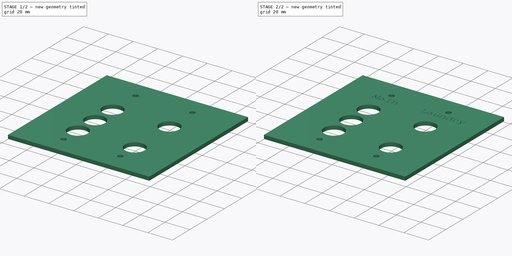
[diagram: build sequence overview — one tinted view per stage of 2, left to right]
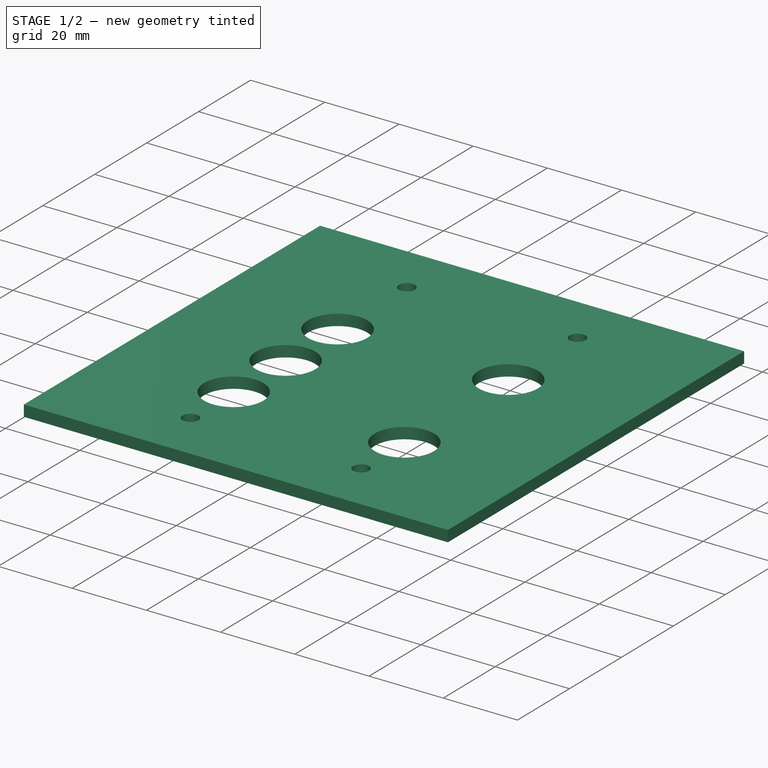
[diagram: stage 1 of 2 — iso view after this stage's code; geometry added in this stage tinted green]
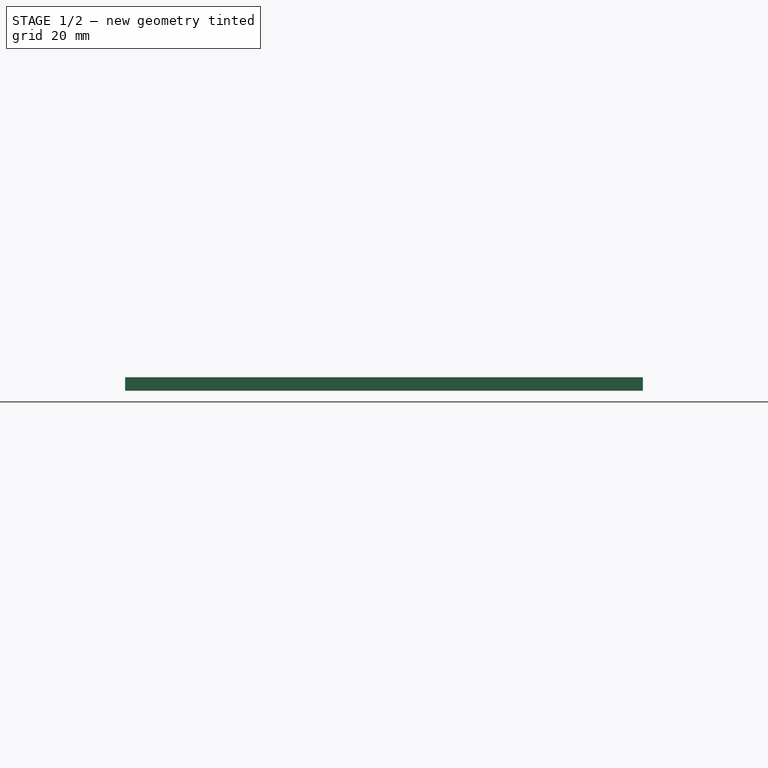
[diagram: stage 1 of 2 — front view after this stage's code; geometry added in this stage tinted green]
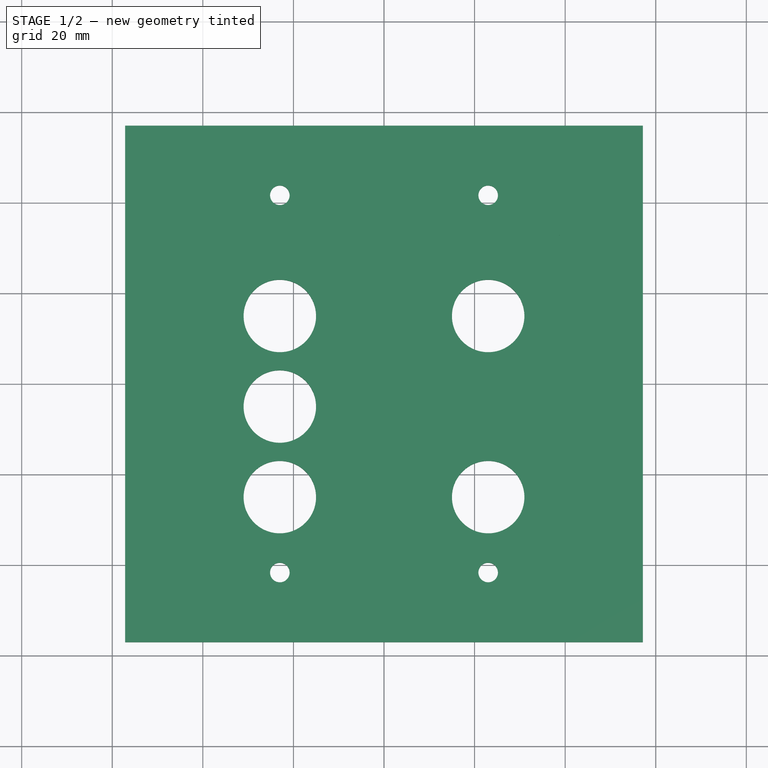
[diagram: stage 1 of 2 — top view after this stage's code; geometry added in this stage tinted green]
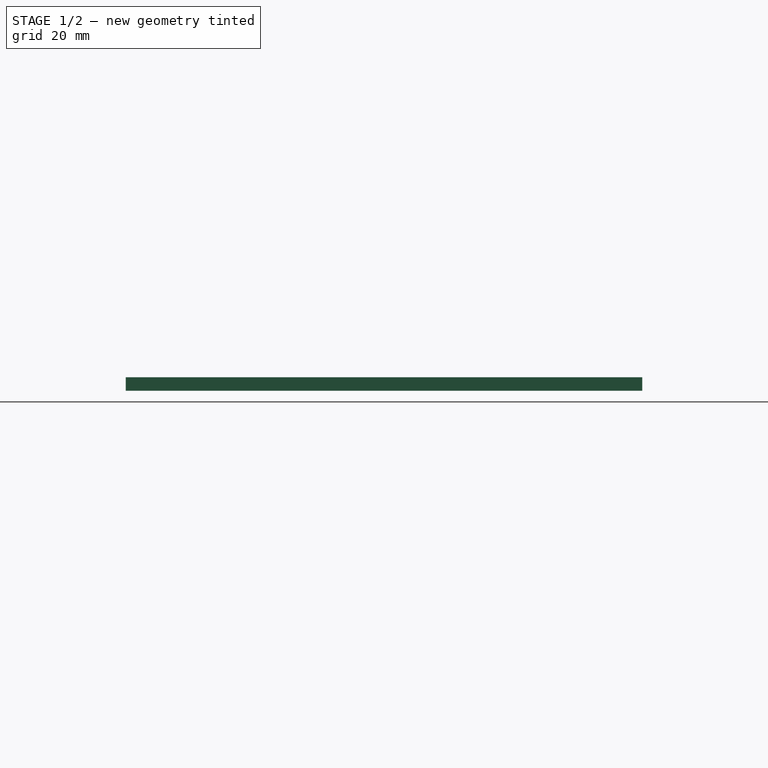
[diagram: stage 1 of 2 — right view after this stage's code; geometry added in this stage tinted green]
FCSTD DOCUMENT  (FreeCAD 0.18R)
Label: faceplate
License: All rights reserved
LicenseURL: http://en.wikipedia.org/wiki/All_rights_reserved
objects: Part::Extrusion×2, Sketcher::SketchObject×1, PartDesign::Body×1, Part::Feature×1, Part::Cut×1
note: 6 computed .brp shape members not serialized (recipe doc carries the construction recipe); baked Part::Feature solids carry a one-line shape summary decoded from their .brp

FEATURE [Sketcher::SketchObject] Sketch
  MapMode = 5
  Support = -> [XY_Plane]
  expr: Constraints[19] = Constraints.MountingHoleHeight / 2
  expr: Constraints[21] = Constraints.PanelWidth / 2
  expr: Constraints[35] = Constraints.MountingHoleWidth / 2
  expr: Constraints[33] = Constraints.ButtonHeight / 2
  expr: Constraints[20] = Constraints.PanelHeight / 2
  sketch-geometry (13):
    g0: Circle CenterX=-23 CenterY=15 CenterZ=0 NormalX=0 NormalY=0 NormalZ=1 AngleXU=0 Radius=8
    g1: LineSegment StartX=-57.15 StartY=57.023 StartZ=0 EndX=57.15 EndY=57.023 EndZ=0
    g2: LineSegment StartX=57.15 StartY=57.023 StartZ=0 EndX=57.15 EndY=-57.023 EndZ=0
    g3: LineSegment StartX=57.15 StartY=-57.023 StartZ=0 EndX=-57.15 EndY=-57.023 EndZ=0
    g4: LineSegment StartX=-57.15 StartY=-57.023 StartZ=0 EndX=-57.15 EndY=57.023 EndZ=0
    g5: Circle CenterX=-23 CenterY=41.65 CenterZ=0 NormalX=0 NormalY=0 NormalZ=1 AngleXU=0 Radius=2.16
    g6: Circle CenterX=-23 CenterY=-41.65 CenterZ=0 NormalX=0 NormalY=0 NormalZ=1 AngleXU=0 Radius=2.16
    g7: Circle CenterX=23 CenterY=-41.65 CenterZ=0 NormalX=0 NormalY=0 NormalZ=1 AngleXU=0 Radius=2.16
    g8: Circle CenterX=23 CenterY=41.65 CenterZ=0 NormalX=0 NormalY=0 NormalZ=1 AngleXU=0 Radius=2.16
    g9: Circle CenterX=-23 CenterY=-5 CenterZ=0 NormalX=0 NormalY=0 NormalZ=1 AngleXU=0 Radius=8
    g10: Circle CenterX=-23 CenterY=-25 CenterZ=0 NormalX=0 NormalY=0 NormalZ=1 AngleXU=0 Radius=8
    g11: Circle CenterX=23 CenterY=15 CenterZ=0 NormalX=0 NormalY=0 NormalZ=1 AngleXU=0 Radius=8
    g12: Circle CenterX=23 CenterY=-25 CenterZ=0 NormalX=0 NormalY=0 NormalZ=1 AngleXU=0 Radius=8
  constraints (39):
    c: Coincident(g1,g2)
    c: Coincident(g2,g3)
    c: Coincident(g3,g4)
    c: Coincident(g4,g1)
    c: Horizontal(g1)
    c: Horizontal(g3)
    c: Vertical(g2)
    c: Vertical(g4)
    c: DistanceX(g1,g1) = 114.3  'PanelWidth'
    c: DistanceY(g4,g4) = 114.046  'PanelHeight'
    c: Diameter(g0) = 16
    c: Diameter(g5) = 4.32
    c: Equal(g5,g6) = 4.32
    c: DistanceY(g6,g5) = 83.3  'MountingHoleHeight'
    c: Horizontal(g5,g8)
    c: Horizontal(g7,g6)
    c: Vertical(g8,g7)
    c: Vertical(g5,g6)
    c: DistanceX(g5,g8) = 46  'MountingHoleWidth'
    c: DistanceY(g-1,g5) = 41.65
    c: DistanceY(g-1,g1) = 57.023
    c: DistanceX(g1,g-1) = 57.15
    c: Equal(g0,g9) = 16
    c: Vertical(g9,g0)
    c: Vertical(g0,g10)
    c: Equal(g0,g11) = 16
    c: Horizontal(g12,g10)
    c: Horizontal(g11,g0)
    c: Equal(g11,g12)
    c: Equal(g12,g10)
    c: Equal(g5,g8)
    c: Equal(g8,g7)
    c: DistanceY(g12,g11) = 40  'ButtonHeight'
    c: DistanceY(g10,g9) = 20
    c: Vertical(g11,g12)
    c: DistanceX(g8) = 23
    c: Vertical(g0,g5)
    c: Vertical(g11,g8)
    c: DistanceY(g-1,g11) = 15
FEATURE [PartDesign::Body] Body
  Group = -> [Sketch]
  Origin = -> Origin
FEATURE [Part::Extrusion] Extrude  label="faceplate"
  Base = -> Sketch
  Dir = (0,0,1)
  DirMode = 2
  FaceMakerClass = Part::FaceMakerBullseye
  LengthFwd = 3
  LengthRev = 0
  Reversed = true
  Solid = true
  Symmetric = false
FEATURE [Part::Feature] Shell  label="LabelsFlat?"
  shape: bbox 74.41 x 7.027 x 2e-07 mm, 12 faces, 0 solids (baked)
FEATURE [Part::Extrusion] Extrude004  label="Labels"
  Base = -> Shell
  Dir = (0,0,1)
  DirMode = 2
  FaceMakerClass = Part::FaceMakerBullseye
  LengthFwd = 2
  LengthRev = 0
  Reversed = true
  Solid = false
  Symmetric = false
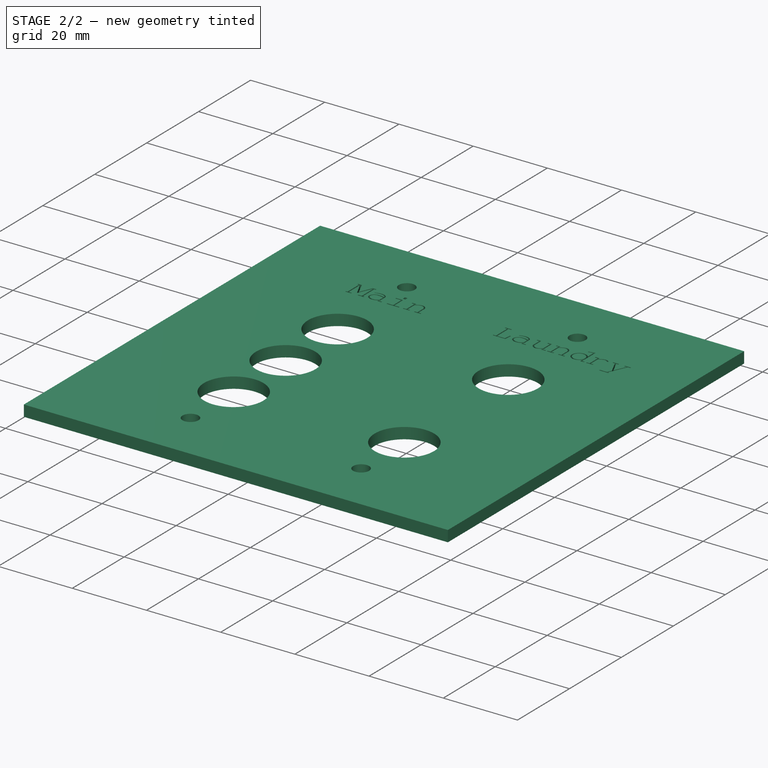
[diagram: stage 2 of 2 — iso view after this stage's code; geometry added in this stage tinted green]
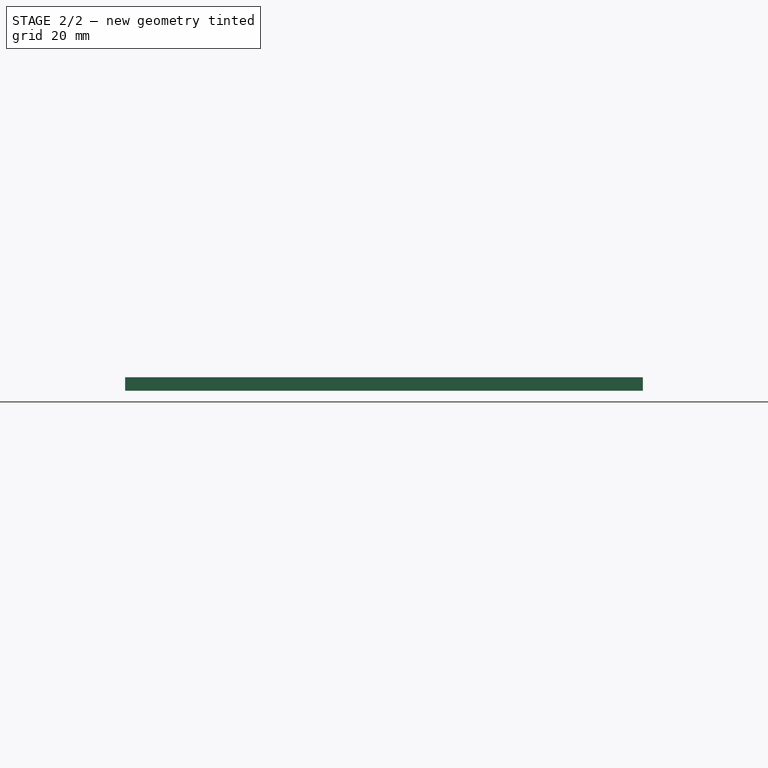
[diagram: stage 2 of 2 — front view after this stage's code; geometry added in this stage tinted green]
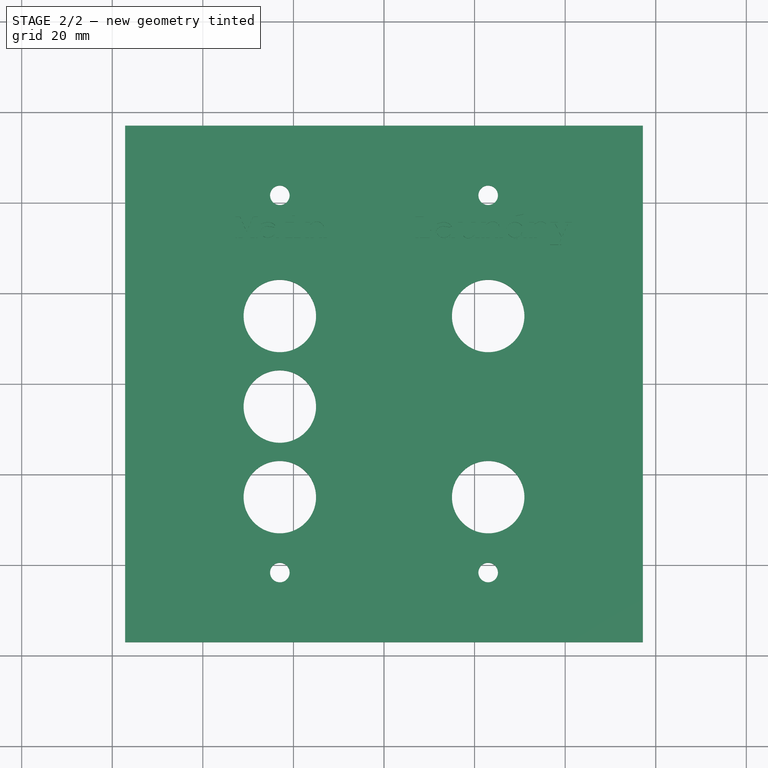
[diagram: stage 2 of 2 — top view after this stage's code; geometry added in this stage tinted green]
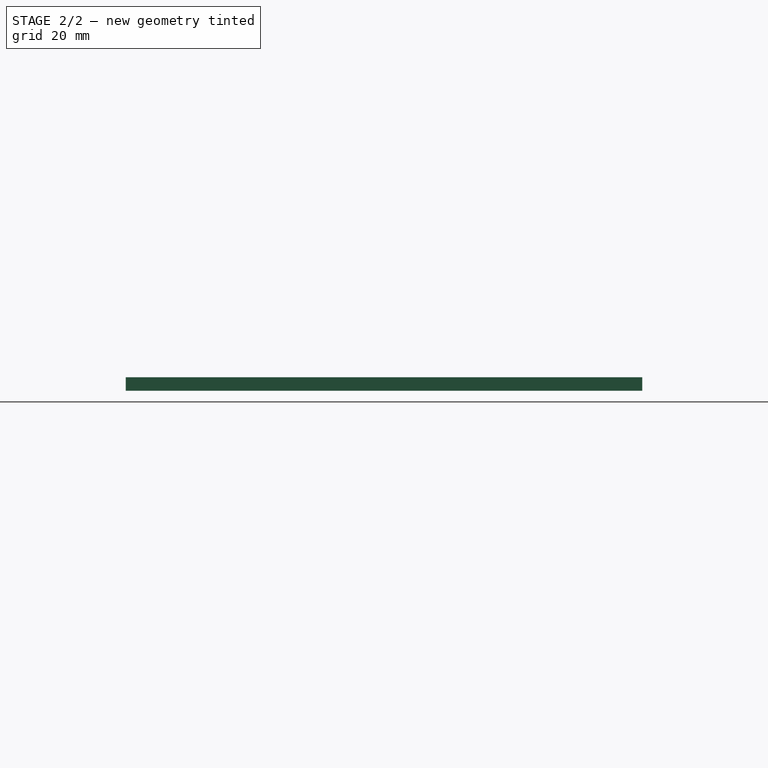
[diagram: stage 2 of 2 — right view after this stage's code; geometry added in this stage tinted green]
FEATURE [Part::Cut] Cut
  Base = -> Extrude
  Tool = -> Extrude004
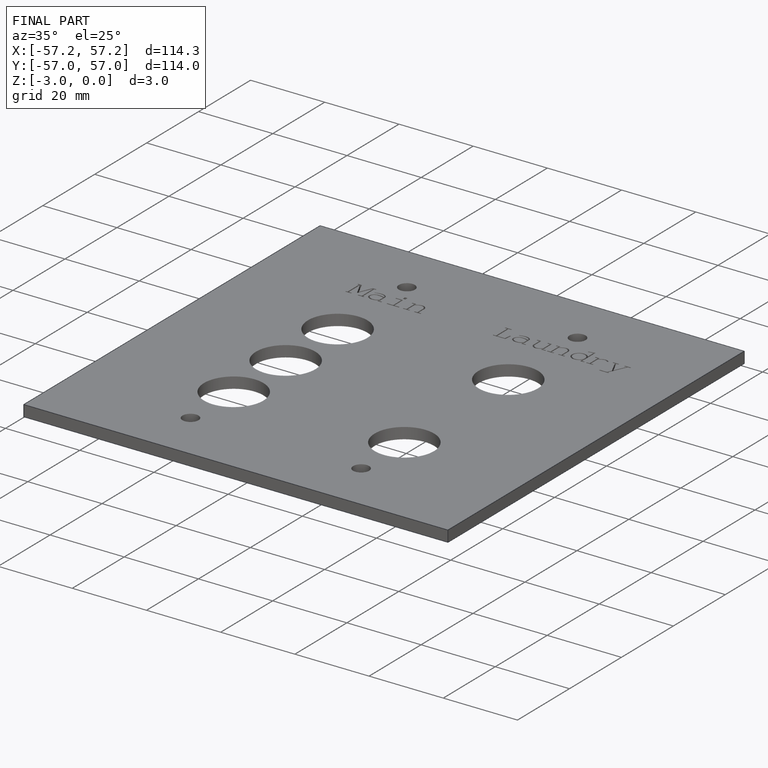
[diagram: finished part — iso view with bounding-box wireframe]
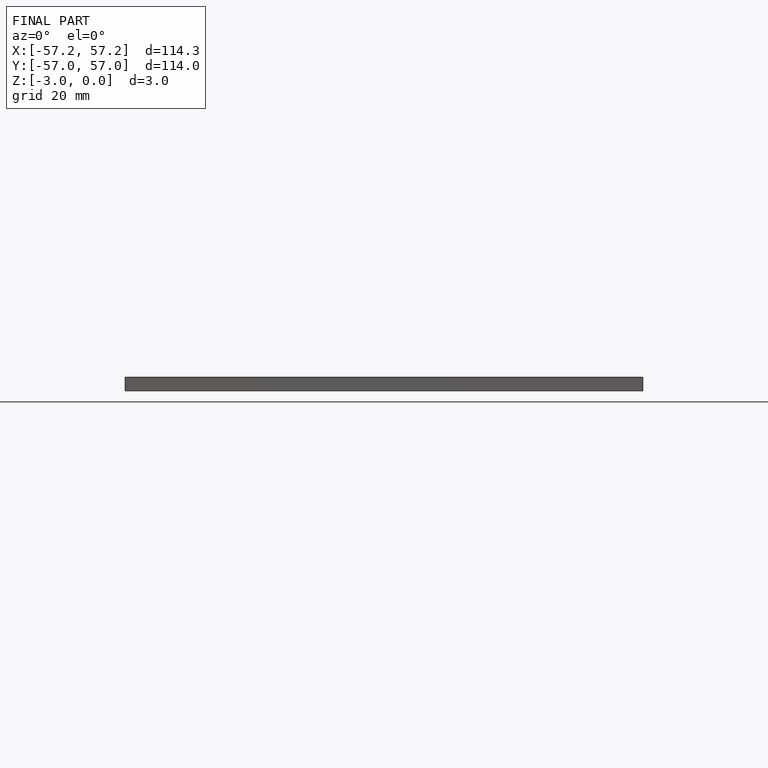
[diagram: finished part — front view with bounding-box wireframe]
